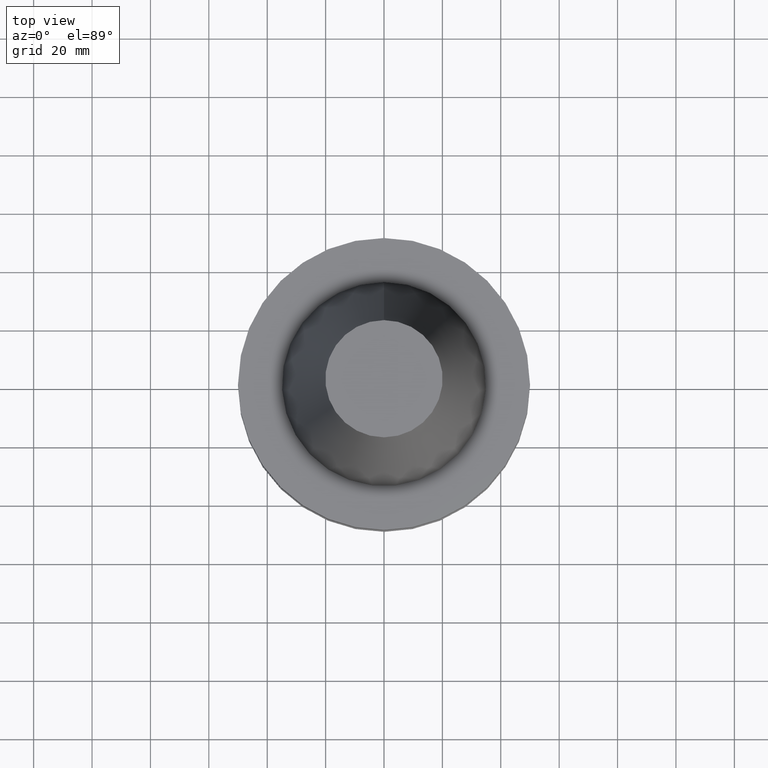
[diagram: clean part render]
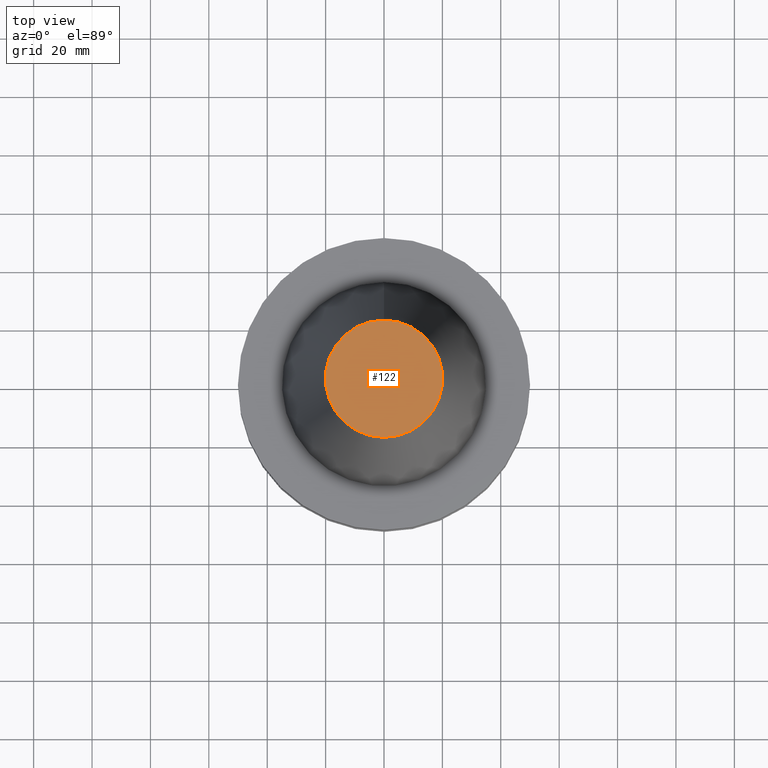
[diagram: same view with one face highlighted and labeled with its STEP entity id]
A machine part, top view. The second image highlights one B-rep face of the part: STEP entity #122.
In plain terms, the highlighted planar face has unit normal (-0, -0, 1).
Its self-contained STEP definition (entity closure, byte-faithful):
#95=EDGE_CURVE('Unnamed[1]',#233,#233,#234,.T.);
#122=ADVANCED_FACE('Unnamed[1]',(#273),#274,.T.);
#233=VERTEX_POINT('',#417);
#234=CIRCLE('',#418,20.0791666651884);
#273=FACE_OUTER_BOUND('',#468,.T.);
#274=PLANE('',#469);
#417=CARTESIAN_POINT('',(-6.23345220766003E-015,20.0791666651884,101.8));
#418=AXIS2_PLACEMENT_3D('',#616,#617,#618);
#468=EDGE_LOOP('',(#660));
#469=AXIS2_PLACEMENT_3D('',#661,#662,#663);
#616=CARTESIAN_POINT('',(-6.23345220766003E-015,1.30104902206953E-014,101.8));
#617=DIRECTION('',(-6.12323399573677E-017,1.40684069939014E-019,1.0));
#618=DIRECTION('',(-4.81853831597193E-033,1.0,-1.40684069939014E-019));
#660=ORIENTED_EDGE('',*,*,#95,.T.);
#661=CARTESIAN_POINT('',(-6.23345220766003E-015,10.0395833325942,101.8));
#662=DIRECTION('',(-6.12323399573677E-017,-1.22464679914735E-016,1.0));
#663=DIRECTION('',(-1.23259516440783E-032,1.0,1.22464679914735E-016));